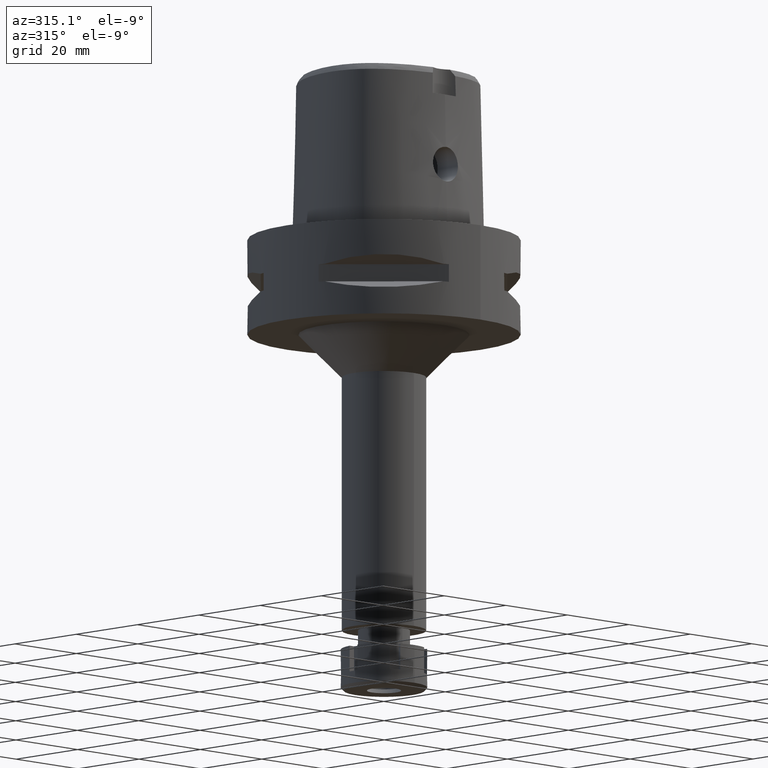
[diagram: clean part render]
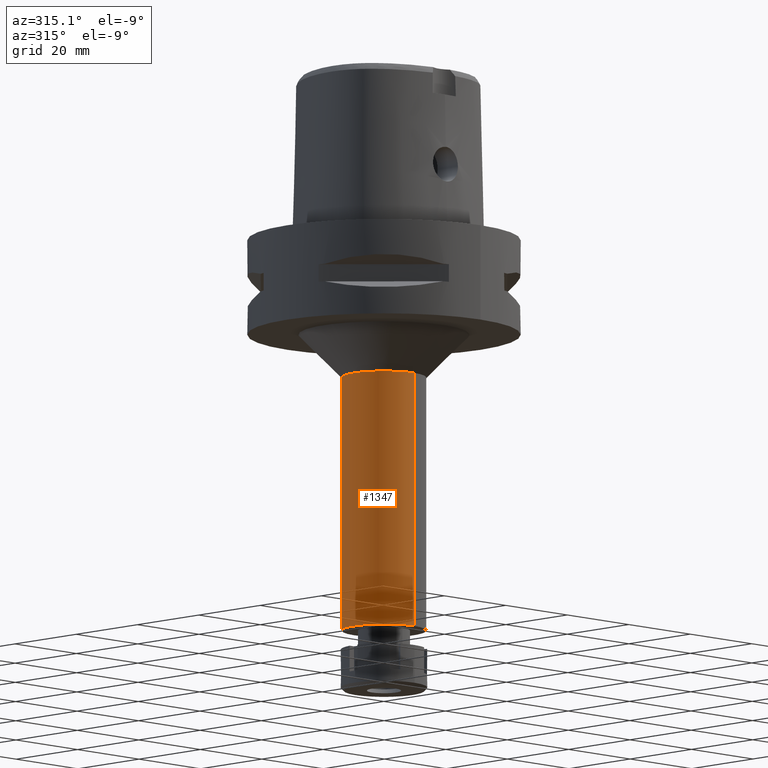
[diagram: same view with one face highlighted and labeled with its STEP entity id]
A machine part, auxiliary view. The second image highlights one B-rep face of the part: STEP entity #1347.
In plain terms, the highlighted cylindrical surface (partial cylindrical patch) has radius 9.75 mm, axis along (0, 0, -1).
Its self-contained STEP definition (entity closure, byte-faithful):
#190 = DIRECTION ( 'NONE',  ( 0.0000000000000000000, 0.0000000000000000000, -1.000000000000000000 ) ) ;
#214 = CARTESIAN_POINT ( 'NONE',  ( 0.0000000000000000000, -9.750000000000000000, -32.00000000000000000 ) ) ;
#628 = DIRECTION ( 'NONE',  ( 0.0000000000000000000, 1.000000000000000000, 0.0000000000000000000 ) ) ;
#1033 = DIRECTION ( 'NONE',  ( 0.0000000000000000000, 0.0000000000000000000, -1.000000000000000000 ) ) ;
#1258 = EDGE_CURVE ( 'NONE', #1891, #4747, #4605, .T. ) ;
#1347 = ADVANCED_FACE ( 'NONE', ( #4341 ), #3528, .T. ) ;
#1644 = EDGE_CURVE ( 'NONE', #2093, #4859, #3203, .T. ) ;
#1669 = CARTESIAN_POINT ( 'NONE',  ( 0.0000000000000000000, -9.750000000000000000, -91.00000000000000000 ) ) ;
#1891 = VERTEX_POINT ( 'NONE', #214 ) ;
#1897 = EDGE_CURVE ( 'NONE', #4747, #2093, #3150, .T. ) ;
#1899 = CARTESIAN_POINT ( 'NONE',  ( 0.0000000000000000000, 9.750000000000000000, -32.00000000000000000 ) ) ;
#1900 = AXIS2_PLACEMENT_3D ( 'NONE', #4234, #4999, #4260 ) ;
#2093 = VERTEX_POINT ( 'NONE', #3593 ) ;
#2125 = EDGE_CURVE ( 'NONE', #1891, #4859, #4495, .T. ) ;
#2401 = ORIENTED_EDGE ( 'NONE', *, *, #1258, .T. ) ;
#2631 = AXIS2_PLACEMENT_3D ( 'NONE', #3025, #4740, #5192 ) ;
#2850 = AXIS2_PLACEMENT_3D ( 'NONE', #3186, #4422, #628 ) ;
#3025 = CARTESIAN_POINT ( 'NONE',  ( 0.0000000000000000000, 1.285879139105000048E-14, 5.000000000000000000 ) ) ;
#3055 = ORIENTED_EDGE ( 'NONE', *, *, #1644, .T. ) ;
#3150 = LINE ( 'NONE', #1899, #4274 ) ;
#3186 = CARTESIAN_POINT ( 'NONE',  ( 0.0000000000000000000, 1.285879139105000048E-14, -91.00000000000000000 ) ) ;
#3203 = CIRCLE ( 'NONE', #2850, 9.750000000000000000 ) ;
#3528 = CYLINDRICAL_SURFACE ( 'NONE', #2631, 9.750000000000000000 ) ;
#3593 = CARTESIAN_POINT ( 'NONE',  ( 0.0000000000000000000, 9.750000000000000000, -91.00000000000000000 ) ) ;
#3840 = EDGE_LOOP ( 'NONE', ( #3055, #4289, #2401, #4145 ) ) ;
#4145 = ORIENTED_EDGE ( 'NONE', *, *, #1897, .T. ) ;
#4234 = CARTESIAN_POINT ( 'NONE',  ( 0.0000000000000000000, 0.0000000000000000000, -32.00000000000000000 ) ) ;
#4260 = DIRECTION ( 'NONE',  ( 0.0000000000000000000, -1.000000000000000000, 0.0000000000000000000 ) ) ;
#4274 = VECTOR ( 'NONE', #190, 1000.000000000000000 ) ;
#4289 = ORIENTED_EDGE ( 'NONE', *, *, #2125, .F. ) ;
#4341 = FACE_OUTER_BOUND ( 'NONE', #3840, .T. ) ;
#4422 = DIRECTION ( 'NONE',  ( 0.0000000000000000000, 0.0000000000000000000, 1.000000000000000000 ) ) ;
#4495 = LINE ( 'NONE', #5317, #5364 ) ;
#4605 = CIRCLE ( 'NONE', #1900, 9.750000000000000000 ) ;
#4740 = DIRECTION ( 'NONE',  ( 0.0000000000000000000, 0.0000000000000000000, -1.000000000000000000 ) ) ;
#4747 = VERTEX_POINT ( 'NONE', #5142 ) ;
#4859 = VERTEX_POINT ( 'NONE', #1669 ) ;
#4999 = DIRECTION ( 'NONE',  ( 0.0000000000000000000, 0.0000000000000000000, -1.000000000000000000 ) ) ;
#5142 = CARTESIAN_POINT ( 'NONE',  ( 0.0000000000000000000, 9.750000000000000000, -32.00000000000000000 ) ) ;
#5192 = DIRECTION ( 'NONE',  ( 0.0000000000000000000, -1.000000000000000000, 0.0000000000000000000 ) ) ;
#5317 = CARTESIAN_POINT ( 'NONE',  ( 0.0000000000000000000, -9.750000000000000000, -32.00000000000000000 ) ) ;
#5364 = VECTOR ( 'NONE', #1033, 1000.000000000000000 ) ;